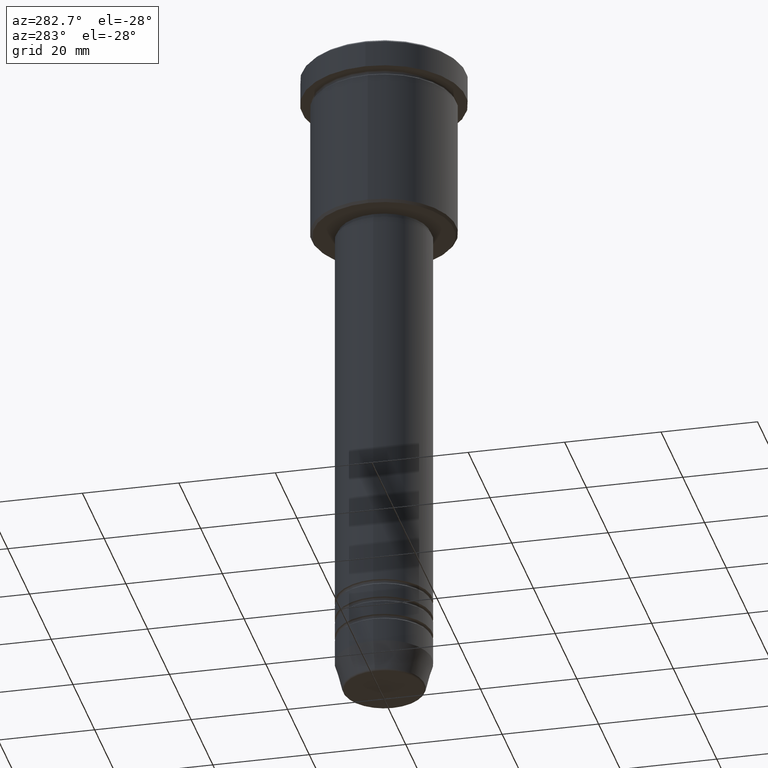
[diagram: clean part render]
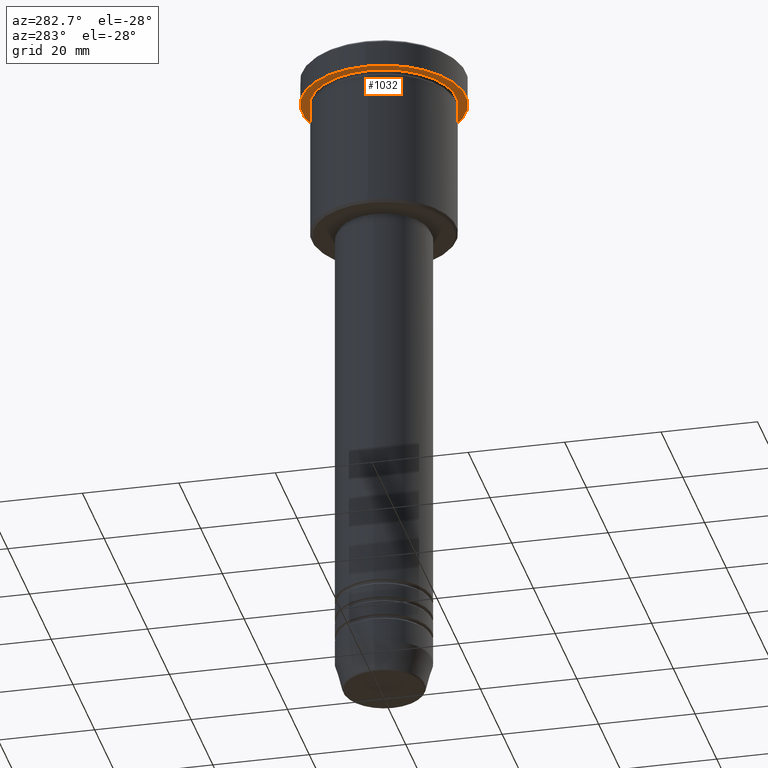
[diagram: same view with one face highlighted and labeled with its STEP entity id]
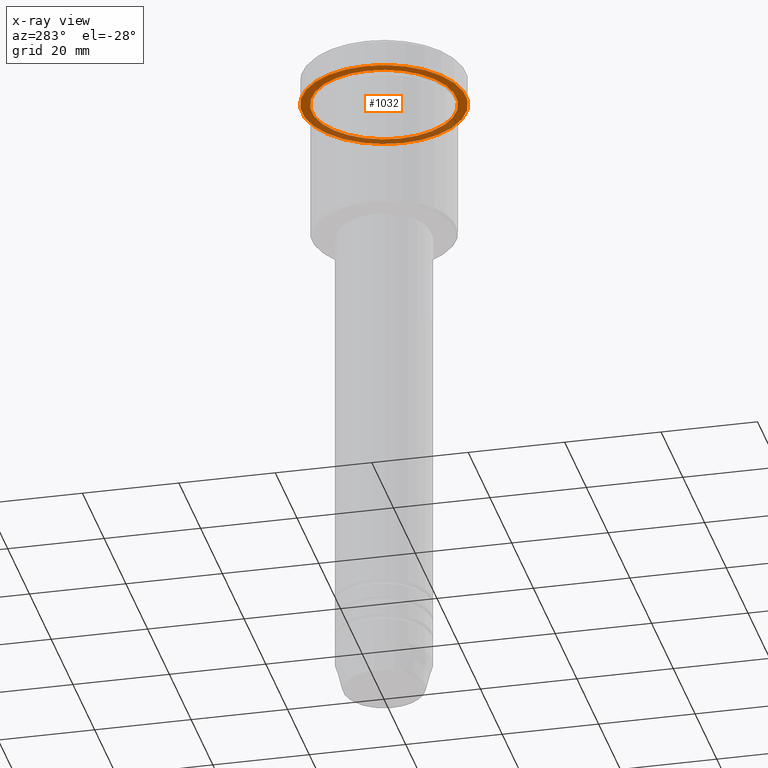
[diagram: x-ray of the same camera — body ghosted, the highlighted face saturated]
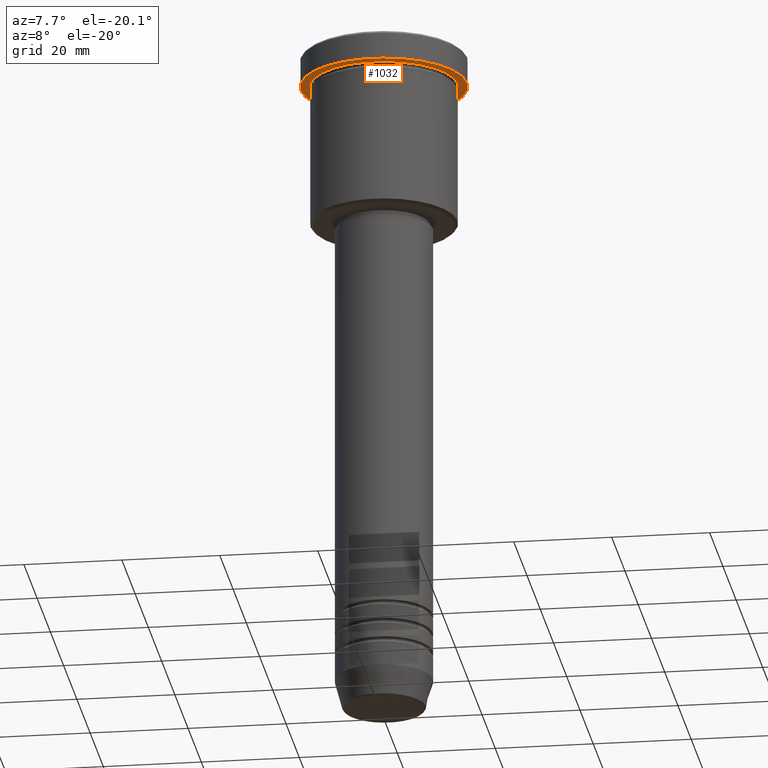
[diagram: same view with one face highlighted and labeled with its STEP entity id]
A machine part, auxiliary view. The second image highlights one B-rep face of the part: STEP entity #1032.
The next image is the same camera in x-ray: the body ghosted, the highlighted face saturated — about 34% of this face is hidden behind the body in this view.
A second angle (auxiliary view) of the same face is appended — the face is thin or edge-on in the first view.
In plain terms, the highlighted planar face has unit normal (0, 0, -1).
Its self-contained STEP definition (entity closure, byte-faithful):
#6 = VERTEX_POINT ( 'NONE', #696 ) ;
#46 = AXIS2_PLACEMENT_3D ( 'NONE', #636, #912, #619 ) ;
#83 = AXIS2_PLACEMENT_3D ( 'NONE', #532, #411, #241 ) ;
#117 = EDGE_LOOP ( 'NONE', ( #877, #1105 ) ) ;
#180 = CARTESIAN_POINT ( 'NONE',  ( 17.00000000000000000, 0.000000000000000000, -5.999999999999994671 ) ) ;
#187 = AXIS2_PLACEMENT_3D ( 'NONE', #1117, #496, #1024 ) ;
#197 = EDGE_CURVE ( 'NONE', #6, #1075, #705, .T. ) ;
#208 = EDGE_CURVE ( 'NONE', #802, #707, #263, .T. ) ;
#241 = DIRECTION ( 'NONE',  ( -1.000000000000000000, 0.000000000000000000, 0.000000000000000000 ) ) ;
#263 = CIRCLE ( 'NONE', #187, 15.00000000000000000 ) ;
#313 = ORIENTED_EDGE ( 'NONE', *, *, #951, .T. ) ;
#386 = EDGE_CURVE ( 'NONE', #1075, #6, #736, .T. ) ;
#406 = DIRECTION ( 'NONE',  ( -0.000000000000000000, -0.000000000000000000, 1.000000000000000000 ) ) ;
#411 = DIRECTION ( 'NONE',  ( -0.000000000000000000, -0.000000000000000000, 1.000000000000000000 ) ) ;
#448 = DIRECTION ( 'NONE',  ( -0.000000000000000000, -0.000000000000000000, 1.000000000000000000 ) ) ;
#496 = DIRECTION ( 'NONE',  ( -0.000000000000000000, -0.000000000000000000, 1.000000000000000000 ) ) ;
#532 = CARTESIAN_POINT ( 'NONE',  ( 0.000000000000000000, 0.000000000000000000, -5.999999999999994671 ) ) ;
#537 = AXIS2_PLACEMENT_3D ( 'NONE', #795, #448, #637 ) ;
#550 = ORIENTED_EDGE ( 'NONE', *, *, #208, .T. ) ;
#583 = CARTESIAN_POINT ( 'NONE',  ( 0.000000000000000000, 0.000000000000000000, -5.999999999999994671 ) ) ;
#619 = DIRECTION ( 'NONE',  ( -1.000000000000000000, 0.000000000000000000, -0.000000000000000000 ) ) ;
#636 = CARTESIAN_POINT ( 'NONE',  ( 0.000000000000000000, 17.00000000000000000, -5.999999999999994671 ) ) ;
#637 = DIRECTION ( 'NONE',  ( 1.000000000000000000, 0.000000000000000000, 0.000000000000000000 ) ) ;
#692 = EDGE_LOOP ( 'NONE', ( #550, #313 ) ) ;
#696 = CARTESIAN_POINT ( 'NONE',  ( -17.00000000000000000, 2.081899558550500280E-15, -5.999999999999994671 ) ) ;
#705 = CIRCLE ( 'NONE', #537, 17.00000000000000000 ) ;
#707 = VERTEX_POINT ( 'NONE', #944 ) ;
#736 = CIRCLE ( 'NONE', #1171, 17.00000000000000000 ) ;
#795 = CARTESIAN_POINT ( 'NONE',  ( 0.000000000000000000, 0.000000000000000000, -5.999999999999994671 ) ) ;
#802 = VERTEX_POINT ( 'NONE', #838 ) ;
#838 = CARTESIAN_POINT ( 'NONE',  ( -15.00000000000000000, 0.000000000000000000, -5.999999999999994671 ) ) ;
#877 = ORIENTED_EDGE ( 'NONE', *, *, #386, .F. ) ;
#912 = DIRECTION ( 'NONE',  ( 0.000000000000000000, 0.000000000000000000, -1.000000000000000000 ) ) ;
#944 = CARTESIAN_POINT ( 'NONE',  ( 15.00000000000000000, 1.836970198721029589E-15, -5.999999999999994671 ) ) ;
#951 = EDGE_CURVE ( 'NONE', #707, #802, #1138, .T. ) ;
#1024 = DIRECTION ( 'NONE',  ( -1.000000000000000000, 0.000000000000000000, 0.000000000000000000 ) ) ;
#1032 = ADVANCED_FACE ( 'NONE', ( #1097, #1183 ), #1176, .T. ) ;
#1075 = VERTEX_POINT ( 'NONE', #180 ) ;
#1097 = FACE_BOUND ( 'NONE', #692, .T. ) ;
#1105 = ORIENTED_EDGE ( 'NONE', *, *, #197, .F. ) ;
#1117 = CARTESIAN_POINT ( 'NONE',  ( 0.000000000000000000, 0.000000000000000000, -5.999999999999994671 ) ) ;
#1130 = DIRECTION ( 'NONE',  ( 1.000000000000000000, 0.000000000000000000, 0.000000000000000000 ) ) ;
#1138 = CIRCLE ( 'NONE', #83, 15.00000000000000000 ) ;
#1171 = AXIS2_PLACEMENT_3D ( 'NONE', #583, #406, #1130 ) ;
#1176 = PLANE ( 'NONE',  #46 ) ;
#1183 = FACE_OUTER_BOUND ( 'NONE', #117, .T. ) ;